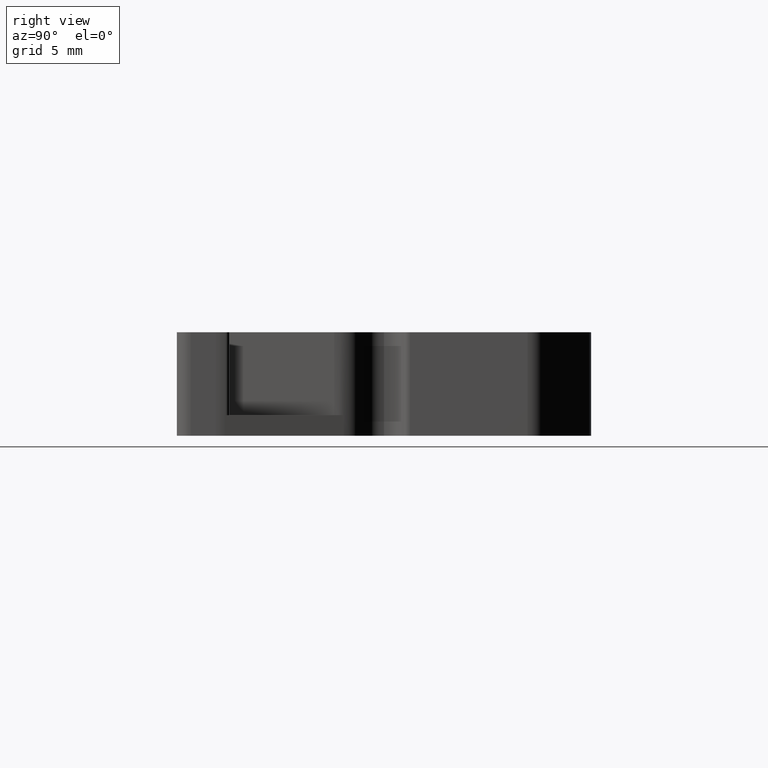
[diagram: clean part render]
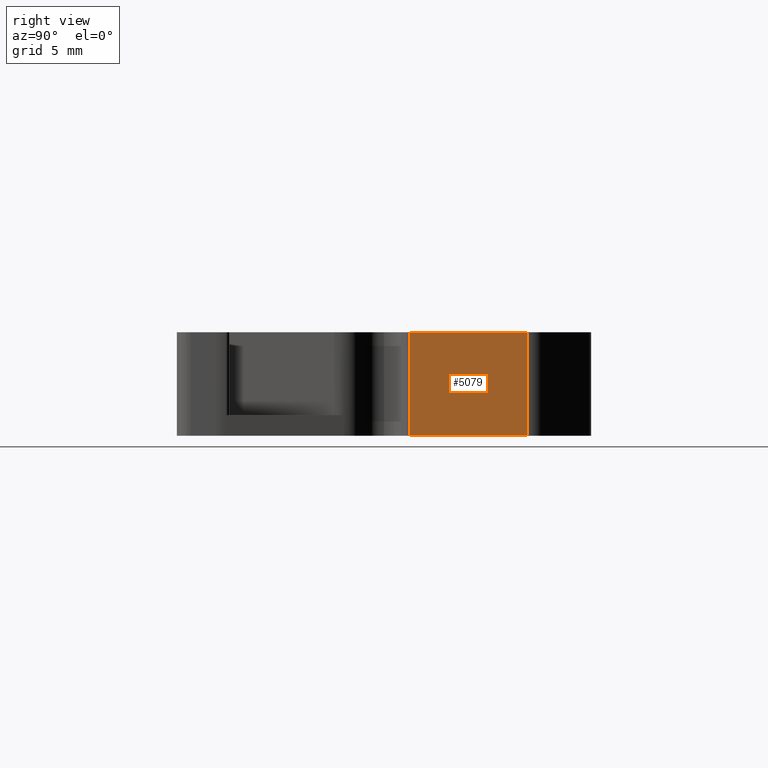
[diagram: same view with one face highlighted and labeled with its STEP entity id]
A machine part, right view. The second image highlights one B-rep face of the part: STEP entity #5079.
In plain terms, the highlighted planar face has unit normal (-1, 0, 0).
Its self-contained STEP definition (entity closure, byte-faithful):
#37 = EDGE_LOOP ( 'NONE', ( #650, #698, #664, #693 ) ) ;
#650 = ORIENTED_EDGE ( 'NONE', *, *, #3721, .F. ) ;
#664 = ORIENTED_EDGE ( 'NONE', *, *, #3700, .T. ) ;
#693 = ORIENTED_EDGE ( 'NONE', *, *, #5006, .F. ) ;
#698 = ORIENTED_EDGE ( 'NONE', *, *, #5039, .F. ) ;
#1579 = CARTESIAN_POINT ( 'NONE',  ( 31.53638685684821000, -15.76397668668717800, 3.703157397815194900E-012 ) ) ;
#1660 = CARTESIAN_POINT ( 'NONE',  ( 31.53638685684821000, -7.258567418850576700, 7.499999999996208400 ) ) ;
#1665 = CARTESIAN_POINT ( 'NONE',  ( 31.53638685684821000, -7.258567418850576700, 3.703157397815194900E-012 ) ) ;
#1676 = CARTESIAN_POINT ( 'NONE',  ( 31.53638685684821000, -15.76397668668717800, 7.499999999996208400 ) ) ;
#1918 = VERTEX_POINT ( 'NONE', #1579 ) ;
#1940 = VERTEX_POINT ( 'NONE', #1665 ) ;
#1955 = VERTEX_POINT ( 'NONE', #1676 ) ;
#1959 = VERTEX_POINT ( 'NONE', #1660 ) ;
#2506 = VECTOR ( 'NONE', #4527, 1000.000000000000000 ) ;
#2513 = VECTOR ( 'NONE', #4615, 1000.000000000000000 ) ;
#2845 = VECTOR ( 'NONE', #5572, 1000.000000000000000 ) ;
#2883 = VECTOR ( 'NONE', #3677, 1000.000000000000000 ) ;
#2912 = AXIS2_PLACEMENT_3D ( 'NONE', #3455, #3480, #3463 ) ;
#3454 = PLANE ( 'NONE',  #2912 ) ;
#3455 = CARTESIAN_POINT ( 'NONE',  ( 31.53638685684821000, -6.637247075291562700, 3.749999999999953800 ) ) ;
#3463 = DIRECTION ( 'NONE',  ( 0.0000000000000000000, 0.0000000000000000000, 1.000000000000000000 ) ) ;
#3473 = FACE_OUTER_BOUND ( 'NONE', #37, .T. ) ;
#3480 = DIRECTION ( 'NONE',  ( -1.000000000000000000, 0.0000000000000000000, 0.0000000000000000000 ) ) ;
#3673 = LINE ( 'NONE', #3680, #2883 ) ;
#3677 = DIRECTION ( 'NONE',  ( 0.0000000000000000000, 0.0000000000000000000, 1.000000000000000000 ) ) ;
#3680 = CARTESIAN_POINT ( 'NONE',  ( 31.53638685684821000, -15.76397668668717800, 3.749999999999953800 ) ) ;
#3700 = EDGE_CURVE ( 'NONE', #1918, #1940, #4557, .T. ) ;
#3721 = EDGE_CURVE ( 'NONE', #1955, #1959, #4594, .T. ) ;
#4527 = DIRECTION ( 'NONE',  ( -0.0000000000000000000, 1.000000000000000000, 0.0000000000000000000 ) ) ;
#4545 = CARTESIAN_POINT ( 'NONE',  ( 31.53638685684821000, -23.10849892941151400, 3.703026770236314500E-012 ) ) ;
#4557 = LINE ( 'NONE', #4545, #2506 ) ;
#4594 = LINE ( 'NONE', #4595, #2513 ) ;
#4595 = CARTESIAN_POINT ( 'NONE',  ( 31.53638685684821000, -23.10849892941151400, 7.499999999996208400 ) ) ;
#4615 = DIRECTION ( 'NONE',  ( 0.0000000000000000000, 1.000000000000000000, 0.0000000000000000000 ) ) ;
#5006 = EDGE_CURVE ( 'NONE', #1959, #1940, #5588, .T. ) ;
#5039 = EDGE_CURVE ( 'NONE', #1918, #1955, #3673, .T. ) ;
#5079 = ADVANCED_FACE ( 'NONE', ( #3473 ), #3454, .F. ) ;
#5572 = DIRECTION ( 'NONE',  ( -0.0000000000000000000, -0.0000000000000000000, -1.000000000000000000 ) ) ;
#5588 = LINE ( 'NONE', #5595, #2845 ) ;
#5595 = CARTESIAN_POINT ( 'NONE',  ( 31.53638685684821000, -7.258567418850577500, 3.749999999999953800 ) ) ;